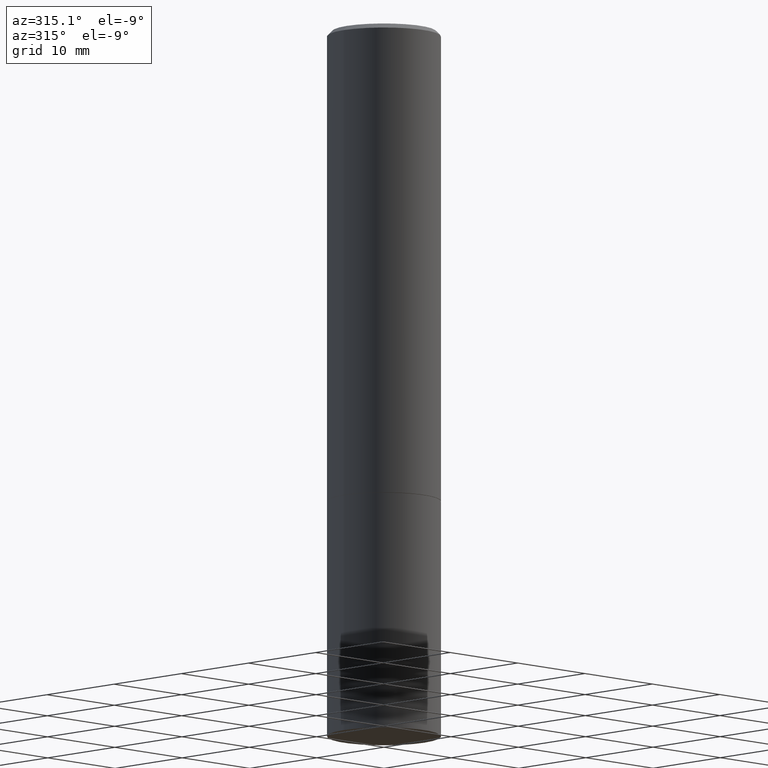
[diagram: clean part render]
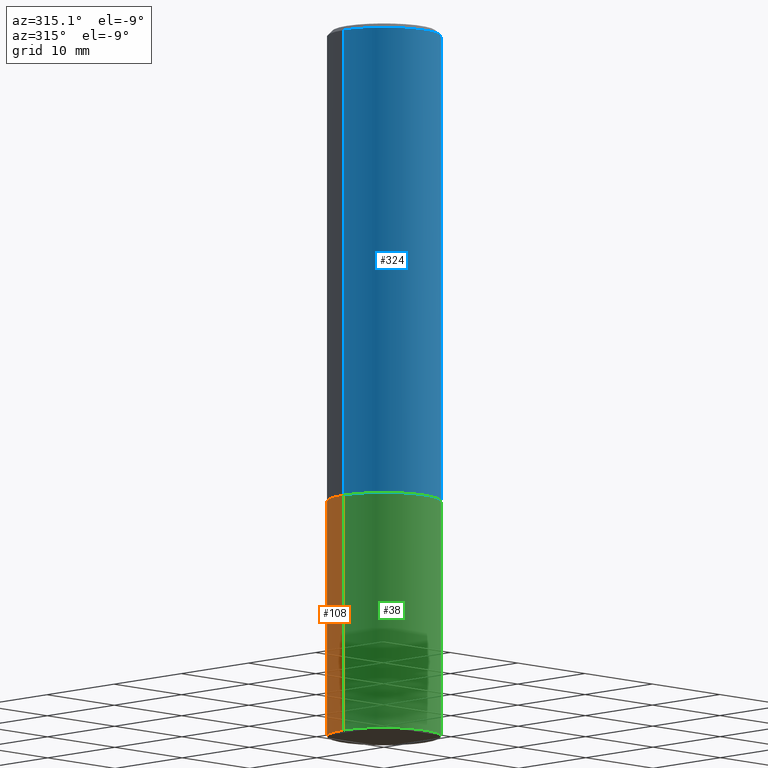
[diagram: same view with three faces highlighted in distinct colors, each labeled with its STEP entity id]
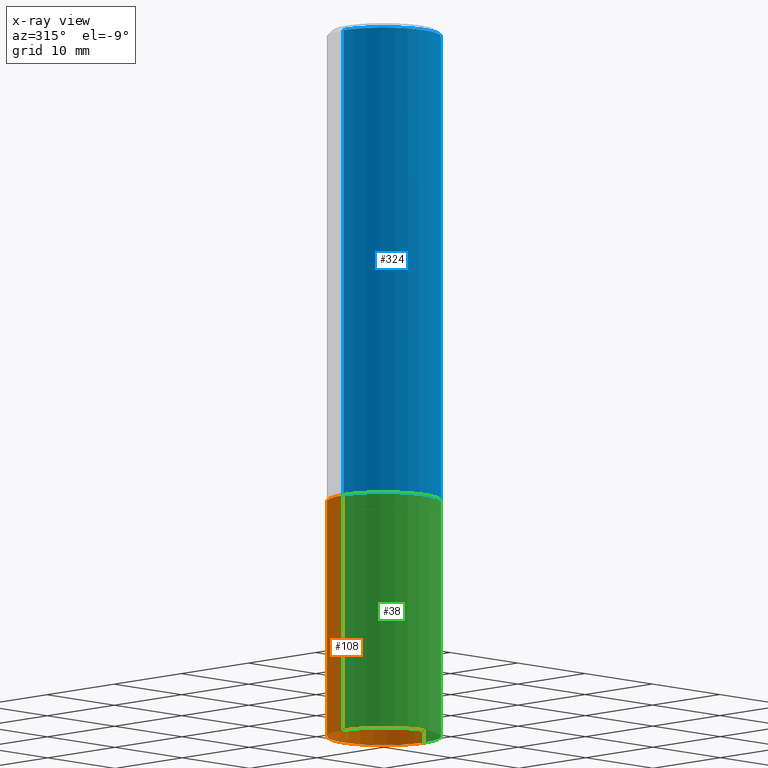
[diagram: x-ray of the same camera — body ghosted, the three highlighted faces saturated]
A machine part, auxiliary view with three faces highlighted in distinct colors.
The next image is the same camera in x-ray (body ghosted, the three faces saturated) — at least one of them is partly hidden behind the body in this view.
Their STEP definitions:

[orange] entity #108 — the highlighted cylindrical surface (partial cylindrical patch) has radius 5.9995 mm, axis along (-0, 0, 1).
#3 = VERTEX_POINT ( 'NONE', #321 ) ;
#8 = DIRECTION ( 'NONE',  ( -2.445468806185136877E-29, 3.491481338843145188E-15, 1.000000000000000000 ) ) ;
#12 = ORIENTED_EDGE ( 'NONE', *, *, #220, .T. ) ;
#20 = CARTESIAN_POINT ( 'NONE',  ( 0.000000000000000000, 0.000000000000000000, 0.000000000000000000 ) ) ;
#28 = DIRECTION ( 'NONE',  ( 1.000000000000000000, -6.982962677686265133E-15, 0.000000000000000000 ) ) ;
#42 = ORIENTED_EDGE ( 'NONE', *, *, #54, .F. ) ;
#54 = EDGE_CURVE ( 'NONE', #176, #3, #265, .T. ) ;
#55 = FACE_OUTER_BOUND ( 'NONE', #318, .T. ) ;
#62 = DIRECTION ( 'NONE',  ( -2.445468806185136597E-29, 3.491481338843145583E-15, 1.000000000000000000 ) ) ;
#66 = CARTESIAN_POINT ( 'NONE',  ( -0.2361999999999999933, -6.913011614559027935E-15, -1.968499999999999694 ) ) ;
#79 = EDGE_CURVE ( 'NONE', #281, #277, #293, .T. ) ;
#108 = ADVANCED_FACE ( 'NONE', ( #55 ), #222, .T. ) ;
#117 = CARTESIAN_POINT ( 'NONE',  ( 7.220980290903470182E-29, -1.030964609733603853E-14, -2.952799999999999869 ) ) ;
#121 = ORIENTED_EDGE ( 'NONE', *, *, #79, .T. ) ;
#168 = CARTESIAN_POINT ( 'NONE',  ( -0.2361999999999999933, -6.913011614559027935E-15, -2.952799999999999869 ) ) ;
#174 = CARTESIAN_POINT ( 'NONE',  ( 0.2361999999999999933, -1.195902188180553348E-14, -2.952799999999999869 ) ) ;
#176 = VERTEX_POINT ( 'NONE', #174 ) ;
#220 = EDGE_CURVE ( 'NONE', #176, #281, #226, .T. ) ;
#222 = CYLINDRICAL_SURFACE ( 'NONE', #339, 0.2361999999999999933 ) ;
#225 = VECTOR ( 'NONE', #275, 39.37007874015748143 ) ;
#226 = CIRCLE ( 'NONE', #332, 0.2361999999999999933 ) ;
#231 = AXIS2_PLACEMENT_3D ( 'NONE', #308, #251, #310 ) ;
#246 = DIRECTION ( 'NONE',  ( -2.445468806185136597E-29, 3.491481338843145583E-15, 1.000000000000000000 ) ) ;
#251 = DIRECTION ( 'NONE',  ( -2.445468806185136597E-29, 3.491481338843145583E-15, 1.000000000000000000 ) ) ;
#265 = LINE ( 'NONE', #350, #312 ) ;
#272 = DIRECTION ( 'NONE',  ( 1.000000000000000000, -6.982962677686266711E-15, 4.876176775795936353E-29 ) ) ;
#275 = DIRECTION ( 'NONE',  ( -2.445468806185136877E-29, 3.491481338843145188E-15, 1.000000000000000000 ) ) ;
#277 = VERTEX_POINT ( 'NONE', #66 ) ;
#281 = VERTEX_POINT ( 'NONE', #168 ) ;
#293 = LINE ( 'NONE', #347, #225 ) ;
#308 = CARTESIAN_POINT ( 'NONE',  ( 4.813905344975440714E-29, -6.872981015512730918E-15, -1.968499999999999694 ) ) ;
#310 = DIRECTION ( 'NONE',  ( 1.000000000000000000, -6.982962677686265133E-15, 0.000000000000000000 ) ) ;
#312 = VECTOR ( 'NONE', #8, 39.37007874015748143 ) ;
#318 = EDGE_LOOP ( 'NONE', ( #12, #121, #366, #42 ) ) ;
#321 = CARTESIAN_POINT ( 'NONE',  ( 0.2361999999999999933, -8.522356799982226655E-15, -1.968499999999999694 ) ) ;
#332 = AXIS2_PLACEMENT_3D ( 'NONE', #117, #62, #28 ) ;
#339 = AXIS2_PLACEMENT_3D ( 'NONE', #20, #246, #272 ) ;
#347 = CARTESIAN_POINT ( 'NONE',  ( -0.2361999999999999933, 1.678301941865356591E-15, -1.161852468318208757E-29 ) ) ;
#350 = CARTESIAN_POINT ( 'NONE',  ( 0.2361999999999999933, -1.649375784469496131E-15, 1.151752954443000088E-29 ) ) ;
#351 = CIRCLE ( 'NONE', #231, 0.2361999999999999933 ) ;
#358 = EDGE_CURVE ( 'NONE', #3, #277, #351, .T. ) ;
#366 = ORIENTED_EDGE ( 'NONE', *, *, #358, .F. ) ;

[blue] entity #324 — the highlighted cylindrical surface (partial cylindrical patch) has radius 5.9995 mm, axis along (-0, 0, 1).
#1 = CARTESIAN_POINT ( 'NONE',  ( -0.2361999999999997157, 1.579546157692631255E-15, -0.02000000000000005593 ) ) ;
#36 = CARTESIAN_POINT ( 'NONE',  ( -0.2362000000000000210, -1.791357638610016844E-15, -1.967499999999999805 ) ) ;
#39 = CARTESIAN_POINT ( 'NONE',  ( 0.2361999999999999933, -8.518865318643383648E-15, -1.967499999999999805 ) ) ;
#58 = CARTESIAN_POINT ( 'NONE',  ( 4.890937612370287172E-31, -6.982962677686310098E-17, -0.02000000000000005593 ) ) ;
#68 = EDGE_CURVE ( 'NONE', #257, #159, #96, .T. ) ;
#78 = DIRECTION ( 'NONE',  ( 1.000000000000000000, -6.982962677686266711E-15, 0.000000000000000000 ) ) ;
#89 = EDGE_CURVE ( 'NONE', #243, #159, #100, .T. ) ;
#96 = LINE ( 'NONE', #215, #189 ) ;
#100 = CIRCLE ( 'NONE', #119, 0.2361999999999997157 ) ;
#119 = AXIS2_PLACEMENT_3D ( 'NONE', #58, #305, #78 ) ;
#133 = CARTESIAN_POINT ( 'NONE',  ( 0.2361999999999997157, -1.690279253850496996E-15, -0.02000000000000005593 ) ) ;
#141 = ORIENTED_EDGE ( 'NONE', *, *, #89, .F. ) ;
#159 = VERTEX_POINT ( 'NONE', #133 ) ;
#169 = ORIENTED_EDGE ( 'NONE', *, *, #188, .F. ) ;
#171 = LINE ( 'NONE', #256, #190 ) ;
#188 = EDGE_CURVE ( 'NONE', #326, #243, #171, .T. ) ;
#189 = VECTOR ( 'NONE', #300, 39.37007874015748143 ) ;
#190 = VECTOR ( 'NONE', #282, 39.37007874015748143 ) ;
#198 = AXIS2_PLACEMENT_3D ( 'NONE', #360, #276, #334 ) ;
#199 = CYLINDRICAL_SURFACE ( 'NONE', #279, 0.2361999999999998545 ) ;
#201 = DIRECTION ( 'NONE',  ( -2.445468806185136597E-29, 3.491481338843145583E-15, 1.000000000000000000 ) ) ;
#208 = ORIENTED_EDGE ( 'NONE', *, *, #363, .T. ) ;
#215 = CARTESIAN_POINT ( 'NONE',  ( 0.2361999999999998545, -1.649375784469495145E-15, 1.151752954442999387E-29 ) ) ;
#219 = CIRCLE ( 'NONE', #198, 0.2361999999999999933 ) ;
#230 = CARTESIAN_POINT ( 'NONE',  ( 0.000000000000000000, 0.000000000000000000, 0.000000000000000000 ) ) ;
#243 = VERTEX_POINT ( 'NONE', #1 ) ;
#254 = FACE_OUTER_BOUND ( 'NONE', #342, .T. ) ;
#256 = CARTESIAN_POINT ( 'NONE',  ( -0.2361999999999998545, 1.678301941865355605E-15, -1.161852468318208056E-29 ) ) ;
#257 = VERTEX_POINT ( 'NONE', #39 ) ;
#262 = ORIENTED_EDGE ( 'NONE', *, *, #68, .T. ) ;
#276 = DIRECTION ( 'NONE',  ( -2.445468806185136597E-29, 3.491481338843145583E-15, 1.000000000000000000 ) ) ;
#279 = AXIS2_PLACEMENT_3D ( 'NONE', #230, #201, #284 ) ;
#282 = DIRECTION ( 'NONE',  ( -2.445468806185136877E-29, 3.491481338843145188E-15, 1.000000000000000000 ) ) ;
#284 = DIRECTION ( 'NONE',  ( 1.000000000000000000, -6.982962677686266711E-15, 4.876176775795935793E-29 ) ) ;
#300 = DIRECTION ( 'NONE',  ( -2.445468806185136877E-29, 3.491481338843145188E-15, 1.000000000000000000 ) ) ;
#305 = DIRECTION ( 'NONE',  ( -2.445468806185136597E-29, 3.491481338843145583E-15, 1.000000000000000000 ) ) ;
#324 = ADVANCED_FACE ( 'NONE', ( #254 ), #199, .T. ) ;
#326 = VERTEX_POINT ( 'NONE', #36 ) ;
#334 = DIRECTION ( 'NONE',  ( 1.000000000000000000, -6.982962677686269077E-15, 0.000000000000000000 ) ) ;
#342 = EDGE_LOOP ( 'NONE', ( #169, #208, #262, #141 ) ) ;
#360 = CARTESIAN_POINT ( 'NONE',  ( 4.811459876169255671E-29, -6.869489534173887122E-15, -1.967499999999999805 ) ) ;
#363 = EDGE_CURVE ( 'NONE', #326, #257, #219, .T. ) ;

[green] entity #38 — the highlighted cylindrical surface (partial cylindrical patch) has radius 5.9995 mm, axis along (-0, 0, 1).
#3 = VERTEX_POINT ( 'NONE', #321 ) ;
#8 = DIRECTION ( 'NONE',  ( -2.445468806185136877E-29, 3.491481338843145188E-15, 1.000000000000000000 ) ) ;
#11 = EDGE_CURVE ( 'NONE', #277, #3, #181, .T. ) ;
#16 = AXIS2_PLACEMENT_3D ( 'NONE', #77, #131, #239 ) ;
#19 = DIRECTION ( 'NONE',  ( 1.000000000000000000, -6.982962677686265133E-15, 0.000000000000000000 ) ) ;
#24 = AXIS2_PLACEMENT_3D ( 'NONE', #320, #72, #154 ) ;
#38 = ADVANCED_FACE ( 'NONE', ( #242 ), #345, .T. ) ;
#54 = EDGE_CURVE ( 'NONE', #176, #3, #265, .T. ) ;
#63 = EDGE_LOOP ( 'NONE', ( #314, #362, #255, #290 ) ) ;
#66 = CARTESIAN_POINT ( 'NONE',  ( -0.2361999999999999933, -6.913011614559027935E-15, -1.968499999999999694 ) ) ;
#72 = DIRECTION ( 'NONE',  ( -2.445468806185136597E-29, 3.491481338843145583E-15, 1.000000000000000000 ) ) ;
#77 = CARTESIAN_POINT ( 'NONE',  ( 0.000000000000000000, 0.000000000000000000, 0.000000000000000000 ) ) ;
#79 = EDGE_CURVE ( 'NONE', #281, #277, #293, .T. ) ;
#131 = DIRECTION ( 'NONE',  ( -2.445468806185136597E-29, 3.491481338843145583E-15, 1.000000000000000000 ) ) ;
#154 = DIRECTION ( 'NONE',  ( 1.000000000000000000, -6.982962677686265133E-15, 0.000000000000000000 ) ) ;
#157 = EDGE_CURVE ( 'NONE', #281, #176, #346, .T. ) ;
#165 = CARTESIAN_POINT ( 'NONE',  ( 7.220980290903470182E-29, -1.030964609733603853E-14, -2.952799999999999869 ) ) ;
#168 = CARTESIAN_POINT ( 'NONE',  ( -0.2361999999999999933, -6.913011614559027935E-15, -2.952799999999999869 ) ) ;
#174 = CARTESIAN_POINT ( 'NONE',  ( 0.2361999999999999933, -1.195902188180553348E-14, -2.952799999999999869 ) ) ;
#176 = VERTEX_POINT ( 'NONE', #174 ) ;
#181 = CIRCLE ( 'NONE', #24, 0.2361999999999999933 ) ;
#225 = VECTOR ( 'NONE', #275, 39.37007874015748143 ) ;
#239 = DIRECTION ( 'NONE',  ( 1.000000000000000000, -6.982962677686266711E-15, 4.876176775795936353E-29 ) ) ;
#242 = FACE_OUTER_BOUND ( 'NONE', #63, .T. ) ;
#255 = ORIENTED_EDGE ( 'NONE', *, *, #54, .T. ) ;
#265 = LINE ( 'NONE', #350, #312 ) ;
#274 = DIRECTION ( 'NONE',  ( -2.445468806185136597E-29, 3.491481338843145583E-15, 1.000000000000000000 ) ) ;
#275 = DIRECTION ( 'NONE',  ( -2.445468806185136877E-29, 3.491481338843145188E-15, 1.000000000000000000 ) ) ;
#277 = VERTEX_POINT ( 'NONE', #66 ) ;
#281 = VERTEX_POINT ( 'NONE', #168 ) ;
#290 = ORIENTED_EDGE ( 'NONE', *, *, #11, .F. ) ;
#293 = LINE ( 'NONE', #347, #225 ) ;
#312 = VECTOR ( 'NONE', #8, 39.37007874015748143 ) ;
#314 = ORIENTED_EDGE ( 'NONE', *, *, #79, .F. ) ;
#320 = CARTESIAN_POINT ( 'NONE',  ( 4.813905344975440714E-29, -6.872981015512730918E-15, -1.968499999999999694 ) ) ;
#321 = CARTESIAN_POINT ( 'NONE',  ( 0.2361999999999999933, -8.522356799982226655E-15, -1.968499999999999694 ) ) ;
#345 = CYLINDRICAL_SURFACE ( 'NONE', #16, 0.2361999999999999933 ) ;
#346 = CIRCLE ( 'NONE', #356, 0.2361999999999999933 ) ;
#347 = CARTESIAN_POINT ( 'NONE',  ( -0.2361999999999999933, 1.678301941865356591E-15, -1.161852468318208757E-29 ) ) ;
#350 = CARTESIAN_POINT ( 'NONE',  ( 0.2361999999999999933, -1.649375784469496131E-15, 1.151752954443000088E-29 ) ) ;
#356 = AXIS2_PLACEMENT_3D ( 'NONE', #165, #274, #19 ) ;
#362 = ORIENTED_EDGE ( 'NONE', *, *, #157, .T. ) ;